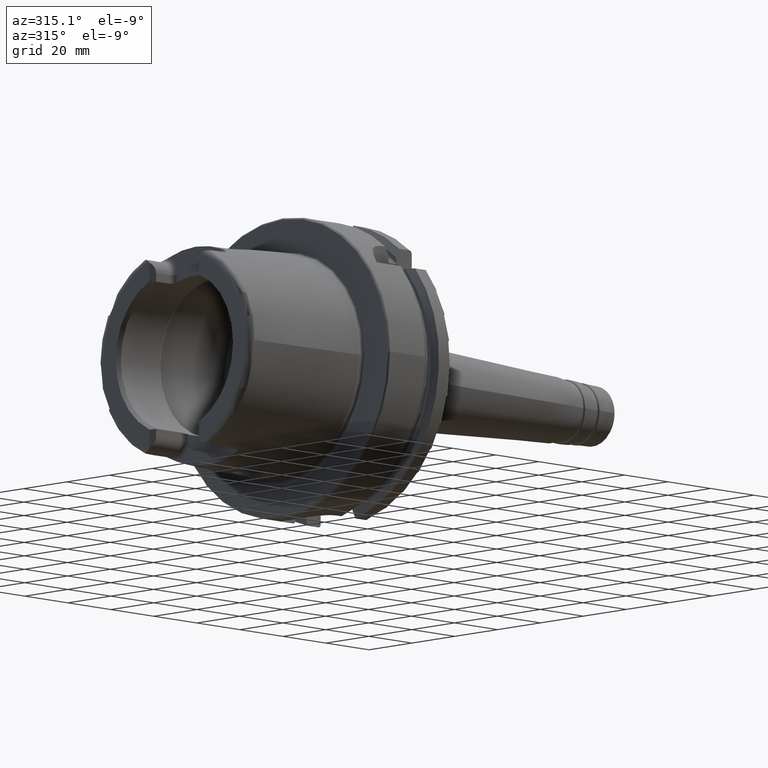
[diagram: clean part render]
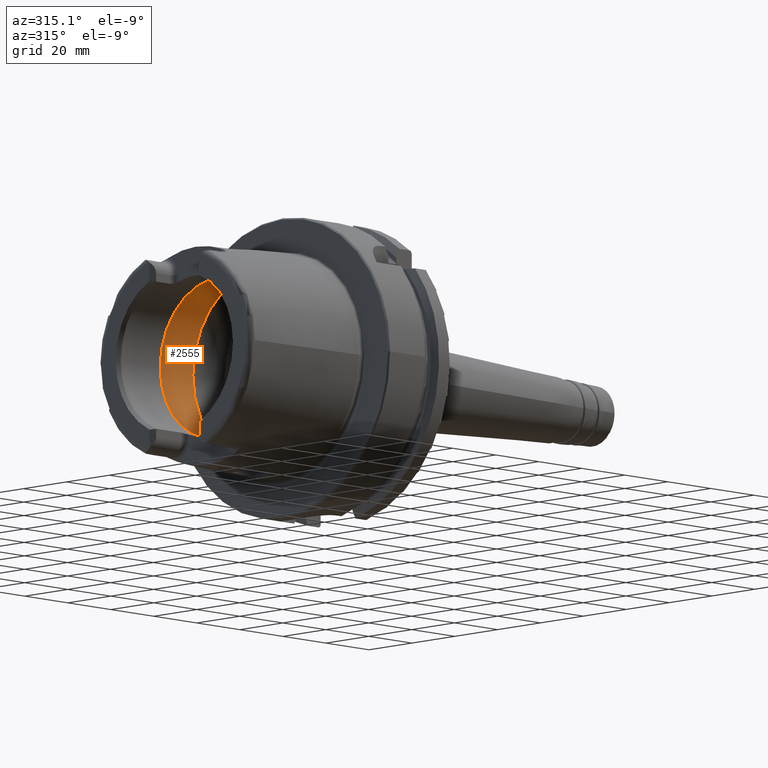
[diagram: same view with one face highlighted and labeled with its STEP entity id]
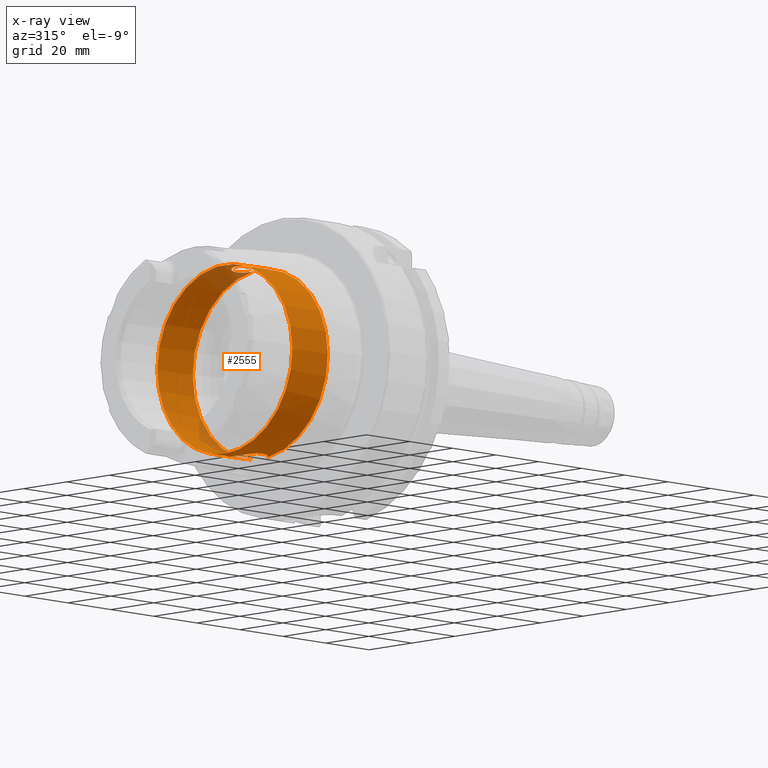
[diagram: x-ray of the same camera — body ghosted, the highlighted face saturated]
A machine part, auxiliary view. The second image highlights one B-rep face of the part: STEP entity #2555.
The next image is the same camera in x-ray: the body ghosted, the highlighted face saturated — about 7% of this face is hidden behind the body in this view.
In plain terms, the highlighted cylindrical surface (bore or boss wall) has radius 31.5 mm, axis along (-1, 0, 0).
Its self-contained STEP definition (entity closure, byte-faithful):
#50=B_SPLINE_CURVE_WITH_KNOTS('',3,(#4631,#4632,#4633,#4634,#4635,#4636,
#4637,#4638,#4639,#4640,#4641,#4642,#4643,#4644,#4645,#4646,#4647,#4648,
#4649,#4650,#4651,#4652,#4653,#4654,#4655,#4656,#4657,#4658,#4659,#4660,
#4661),.UNSPECIFIED.,.F.,.F.,(4,2,2,2,2,2,2,2,2,2,2,3,2,2,4),(-2.38315208047406,
-2.26609494287567,-2.03948128472637,-1.81286762657707,-1.58625396842777,
-1.35964031027847,-1.1330370617835,-0.906433813288535,-0.679830564793567,
-0.453227316298599,-0.226613658149299,0.,0.2266136581493,0.453227316298599,
0.570284453980294),.UNSPECIFIED.);
#55=B_SPLINE_CURVE_WITH_KNOTS('',3,(#4823,#4824,#4825,#4826,#4827,#4828,
#4829,#4830,#4831,#4832,#4833,#4834,#4835,#4836,#4837,#4838,#4839,#4840,
#4841,#4842,#4843,#4844,#4845,#4846,#4847,#4848,#4849,#4850,#4851,#4852,
#4853),.UNSPECIFIED.,.F.,.F.,(4,2,2,3,2,2,2,2,2,2,2,2,2,2,4),(-0.570284453896985,
-0.453227316298598,-0.226613658149299,0.,0.2266136581493,0.453227316298599,
0.679830564793567,0.906433813288535,1.1330370617835,1.35964031027847,1.58625396842777,
1.81286762657707,2.03948128472637,2.26609494287567,2.38315208055736),
 .UNSPECIFIED.);
#219=LINE('',#4871,#333);
#333=VECTOR('',#3429,31.5);
#405=CYLINDRICAL_SURFACE('',#2832,31.5);
#478=FACE_OUTER_BOUND('',#618,.T.);
#618=EDGE_LOOP('',(#1986,#1987,#1988,#1989,#1990,#1991,#1992,#1993,#1994,
#1995));
#825=CIRCLE('',#2833,31.5);
#826=CIRCLE('',#2834,31.5);
#827=CIRCLE('',#2835,31.5);
#828=CIRCLE('',#2836,31.5);
#829=CIRCLE('',#2837,31.5);
#830=CIRCLE('',#2838,31.5);
#1087=VERTEX_POINT('',#4619);
#1088=VERTEX_POINT('',#4630);
#1091=VERTEX_POINT('',#4810);
#1093=VERTEX_POINT('',#4822);
#1095=VERTEX_POINT('',#4868);
#1096=VERTEX_POINT('',#4870);
#1097=VERTEX_POINT('',#4872);
#1098=VERTEX_POINT('',#4874);
#1419=EDGE_CURVE('',#1088,#1087,#50,.T.);
#1425=EDGE_CURVE('',#1093,#1091,#55,.T.);
#1429=EDGE_CURVE('',#1095,#1091,#825,.T.);
#1430=EDGE_CURVE('',#1095,#1096,#219,.T.);
#1431=EDGE_CURVE('',#1096,#1097,#826,.T.);
#1432=EDGE_CURVE('',#1097,#1098,#827,.T.);
#1433=EDGE_CURVE('',#1098,#1096,#828,.T.);
#1434=EDGE_CURVE('',#1088,#1095,#829,.T.);
#1435=EDGE_CURVE('',#1093,#1087,#830,.T.);
#1986=ORIENTED_EDGE('',*,*,#1425,.T.);
#1987=ORIENTED_EDGE('',*,*,#1429,.F.);
#1988=ORIENTED_EDGE('',*,*,#1430,.T.);
#1989=ORIENTED_EDGE('',*,*,#1431,.T.);
#1990=ORIENTED_EDGE('',*,*,#1432,.T.);
#1991=ORIENTED_EDGE('',*,*,#1433,.T.);
#1992=ORIENTED_EDGE('',*,*,#1430,.F.);
#1993=ORIENTED_EDGE('',*,*,#1434,.F.);
#1994=ORIENTED_EDGE('',*,*,#1419,.T.);
#1995=ORIENTED_EDGE('',*,*,#1435,.F.);
#2555=ADVANCED_FACE('',(#478),#405,.F.);
#2832=AXIS2_PLACEMENT_3D('',#4867,#3425,#3426);
#2833=AXIS2_PLACEMENT_3D('',#4869,#3427,#3428);
#2834=AXIS2_PLACEMENT_3D('',#4873,#3430,#3431);
#2835=AXIS2_PLACEMENT_3D('',#4875,#3432,#3433);
#2836=AXIS2_PLACEMENT_3D('',#4876,#3434,#3435);
#2837=AXIS2_PLACEMENT_3D('',#4877,#3436,#3437);
#2838=AXIS2_PLACEMENT_3D('',#4878,#3438,#3439);
#3425=DIRECTION('center_axis',(-1.,0.,0.));
#3426=DIRECTION('ref_axis',(0.,1.,0.));
#3427=DIRECTION('center_axis',(-1.,0.,0.));
#3428=DIRECTION('ref_axis',(0.,0.,1.));
#3429=DIRECTION('',(-1.,0.,0.));
#3430=DIRECTION('center_axis',(-1.,0.,0.));
#3431=DIRECTION('ref_axis',(0.,0.,1.));
#3432=DIRECTION('center_axis',(-1.,0.,0.));
#3433=DIRECTION('ref_axis',(0.,0.,1.));
#3434=DIRECTION('center_axis',(-1.,0.,0.));
#3435=DIRECTION('ref_axis',(0.,0.,1.));
#3436=DIRECTION('center_axis',(-1.,0.,0.));
#3437=DIRECTION('ref_axis',(0.,0.,1.));
#3438=DIRECTION('center_axis',(-1.,0.,0.));
#3439=DIRECTION('ref_axis',(0.,0.,1.));
#4619=CARTESIAN_POINT('',(-10.,3.31662479035542,-31.3249102153542));
#4630=CARTESIAN_POINT('',(-10.,-3.31662479035542,-31.3249102153542));
#4631=CARTESIAN_POINT('Ctrl Pts',(-10.,-3.31662479035541,-31.3249102153542));
#4632=CARTESIAN_POINT('Ctrl Pts',(-10.2254184154804,-3.65645583807581,-31.2889295191717));
#4633=CARTESIAN_POINT('Ctrl Pts',(-10.482718625598,-3.96799999983657,-31.2503087518862));
#4634=CARTESIAN_POINT('Ctrl Pts',(-11.289042660848,-4.77432403508655,-31.140708727458));
#4635=CARTESIAN_POINT('Ctrl Pts',(-11.9624834305428,-5.23577180141274,-31.0633803744766));
#4636=CARTESIAN_POINT('Ctrl Pts',(-13.4401908644727,-5.84865855662958,-30.9538382316308));
#4637=CARTESIAN_POINT('Ctrl Pts',(-14.2446211395023,-6.00000000000001,-30.9232921921325));
#4638=CARTESIAN_POINT('Ctrl Pts',(-15.7553788604977,-6.00000000000001,-30.9232921921325));
#4639=CARTESIAN_POINT('Ctrl Pts',(-16.5598091355273,-5.84865855662958,-30.9538382316308));
#4640=CARTESIAN_POINT('Ctrl Pts',(-18.0375165694572,-5.23577180141275,-31.0633803744766));
#4641=CARTESIAN_POINT('Ctrl Pts',(-18.710957339152,-4.77432403508655,-31.140708727458));
#4642=CARTESIAN_POINT('Ctrl Pts',(-19.7742996118461,-3.71098176239249,-31.2852440928545));
#4643=CARTESIAN_POINT('Ctrl Pts',(-20.2357665181958,-3.03753058698362,-31.3619556484746));
#4644=CARTESIAN_POINT('Ctrl Pts',(-20.8486671603361,-1.55978711209124,-31.4700797313679));
#4645=CARTESIAN_POINT('Ctrl Pts',(-21.,-0.755344161649895,-31.5));
#4646=CARTESIAN_POINT('Ctrl Pts',(-21.,0.755344161649892,-31.5));
#4647=CARTESIAN_POINT('Ctrl Pts',(-20.8486671603361,1.55978711209124,-31.4700797313679));
#4648=CARTESIAN_POINT('Ctrl Pts',(-20.2357665181958,3.03753058698362,-31.3619556484746));
#4649=CARTESIAN_POINT('Ctrl Pts',(-19.7742996118461,3.71098176239249,-31.2852440928545));
#4650=CARTESIAN_POINT('Ctrl Pts',(-18.710957339152,4.77432403508655,-31.140708727458));
#4651=CARTESIAN_POINT('Ctrl Pts',(-18.0375165694572,5.23577180141274,-31.0633803744766));
#4652=CARTESIAN_POINT('Ctrl Pts',(-16.5598091355273,5.84865855662958,-30.9538382316308));
#4653=CARTESIAN_POINT('Ctrl Pts',(-15.7553788604977,6.00000000000001,-30.9232921921325));
#4654=CARTESIAN_POINT('Ctrl Pts',(-15.,6.00000000000001,-30.9232921921325));
#4655=CARTESIAN_POINT('Ctrl Pts',(-14.2446211395023,6.00000000000001,-30.9232921921325));
#4656=CARTESIAN_POINT('Ctrl Pts',(-13.4401908644727,5.84865855662958,-30.9538382316308));
#4657=CARTESIAN_POINT('Ctrl Pts',(-11.9624834305428,5.23577180141274,-31.0633803744766));
#4658=CARTESIAN_POINT('Ctrl Pts',(-11.289042660848,4.77432403508655,-31.140708727458));
#4659=CARTESIAN_POINT('Ctrl Pts',(-10.4827186254025,3.96799999964111,-31.2503087519128));
#4660=CARTESIAN_POINT('Ctrl Pts',(-10.2254184154949,3.65645583809765,-31.2889295191694));
#4661=CARTESIAN_POINT('Ctrl Pts',(-10.,3.31662479035541,-31.3249102153542));
#4810=CARTESIAN_POINT('',(-10.,-3.31662479035542,31.3249102153542));
#4822=CARTESIAN_POINT('',(-10.,3.31662479035542,31.3249102153542));
#4823=CARTESIAN_POINT('Ctrl Pts',(-10.,3.31662479035542,31.3249102153542));
#4824=CARTESIAN_POINT('Ctrl Pts',(-10.2254184154804,3.65645583807582,31.2889295191717));
#4825=CARTESIAN_POINT('Ctrl Pts',(-10.482718625598,3.96799999983657,31.2503087518862));
#4826=CARTESIAN_POINT('Ctrl Pts',(-11.289042660848,4.77432403508655,31.140708727458));
#4827=CARTESIAN_POINT('Ctrl Pts',(-11.9624834305428,5.23577180141274,31.0633803744766));
#4828=CARTESIAN_POINT('Ctrl Pts',(-13.4401908644727,5.84865855662958,30.9538382316308));
#4829=CARTESIAN_POINT('Ctrl Pts',(-14.2446211395023,6.00000000000001,30.9232921921325));
#4830=CARTESIAN_POINT('Ctrl Pts',(-15.,6.00000000000001,30.9232921921325));
#4831=CARTESIAN_POINT('Ctrl Pts',(-15.7553788604977,6.00000000000001,30.9232921921325));
#4832=CARTESIAN_POINT('Ctrl Pts',(-16.5598091355273,5.84865855662958,30.9538382316308));
#4833=CARTESIAN_POINT('Ctrl Pts',(-18.0375165694572,5.23577180141274,31.0633803744766));
#4834=CARTESIAN_POINT('Ctrl Pts',(-18.710957339152,4.77432403508655,31.140708727458));
#4835=CARTESIAN_POINT('Ctrl Pts',(-19.7742996118461,3.71098176239249,31.2852440928545));
#4836=CARTESIAN_POINT('Ctrl Pts',(-20.2357665181958,3.03753058698362,31.3619556484746));
#4837=CARTESIAN_POINT('Ctrl Pts',(-20.8486671603361,1.55978711209124,31.4700797313679));
#4838=CARTESIAN_POINT('Ctrl Pts',(-21.,0.755344161649892,31.5));
#4839=CARTESIAN_POINT('Ctrl Pts',(-21.,-0.755344161649894,31.5));
#4840=CARTESIAN_POINT('Ctrl Pts',(-20.8486671603361,-1.55978711209124,31.4700797313679));
#4841=CARTESIAN_POINT('Ctrl Pts',(-20.2357665181958,-3.03753058698362,31.3619556484746));
#4842=CARTESIAN_POINT('Ctrl Pts',(-19.7742996118461,-3.71098176239249,31.2852440928545));
#4843=CARTESIAN_POINT('Ctrl Pts',(-18.710957339152,-4.77432403508655,31.140708727458));
#4844=CARTESIAN_POINT('Ctrl Pts',(-18.0375165694572,-5.23577180141274,31.0633803744766));
#4845=CARTESIAN_POINT('Ctrl Pts',(-16.5598091355273,-5.84865855662958,30.9538382316308));
#4846=CARTESIAN_POINT('Ctrl Pts',(-15.7553788604977,-6.00000000000001,30.9232921921325));
#4847=CARTESIAN_POINT('Ctrl Pts',(-14.2446211395023,-6.00000000000001,30.9232921921325));
#4848=CARTESIAN_POINT('Ctrl Pts',(-13.4401908644727,-5.84865855662958,30.9538382316308));
#4849=CARTESIAN_POINT('Ctrl Pts',(-11.9624834305428,-5.23577180141274,31.0633803744766));
#4850=CARTESIAN_POINT('Ctrl Pts',(-11.289042660848,-4.77432403508655,31.140708727458));
#4851=CARTESIAN_POINT('Ctrl Pts',(-10.4827186254025,-3.96799999964111,31.2503087519128));
#4852=CARTESIAN_POINT('Ctrl Pts',(-10.2254184154949,-3.65645583809765,31.2889295191694));
#4853=CARTESIAN_POINT('Ctrl Pts',(-10.,-3.31662479035542,31.3249102153542));
#4867=CARTESIAN_POINT('Origin',(-18.2696370289182,0.,0.));
#4868=CARTESIAN_POINT('',(-10.,-31.5,3.85763741731416E-15));
#4869=CARTESIAN_POINT('Origin',(-10.,0.,0.));
#4870=CARTESIAN_POINT('',(-26.5392740578363,-31.5,3.85763741731416E-15));
#4871=CARTESIAN_POINT('',(-18.2696370289182,-31.5,3.85763741731416E-15));
#4872=CARTESIAN_POINT('',(-26.5392740578363,31.5,0.));
#4873=CARTESIAN_POINT('Origin',(-26.5392740578363,0.,0.));
#4874=CARTESIAN_POINT('',(-26.5392740578363,-3.85763741731416E-15,-31.5));
#4875=CARTESIAN_POINT('Origin',(-26.5392740578363,0.,0.));
#4876=CARTESIAN_POINT('Origin',(-26.5392740578363,0.,0.));
#4877=CARTESIAN_POINT('Origin',(-10.,0.,0.));
#4878=CARTESIAN_POINT('Origin',(-10.,0.,0.));